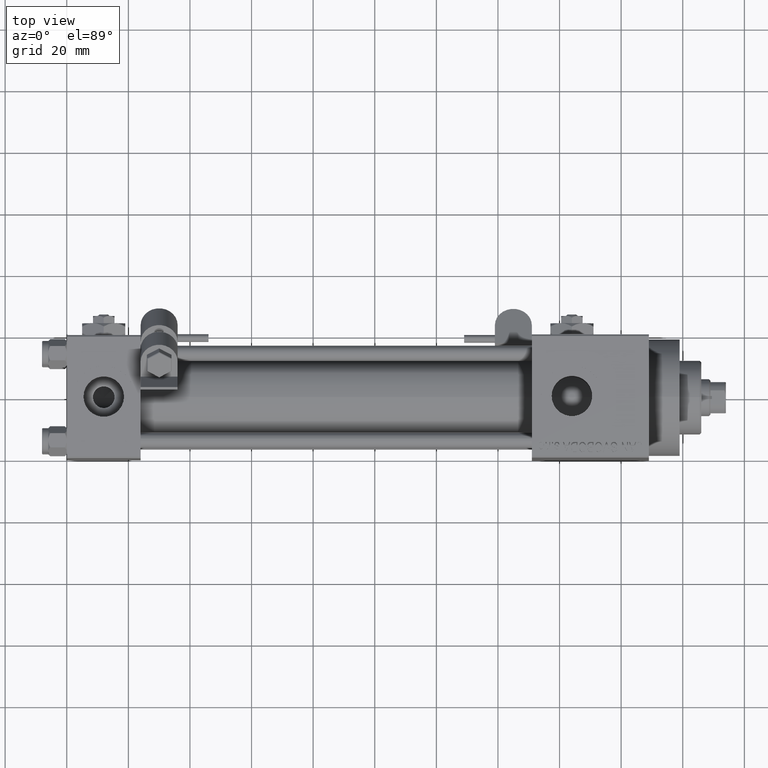
[diagram: clean part render]
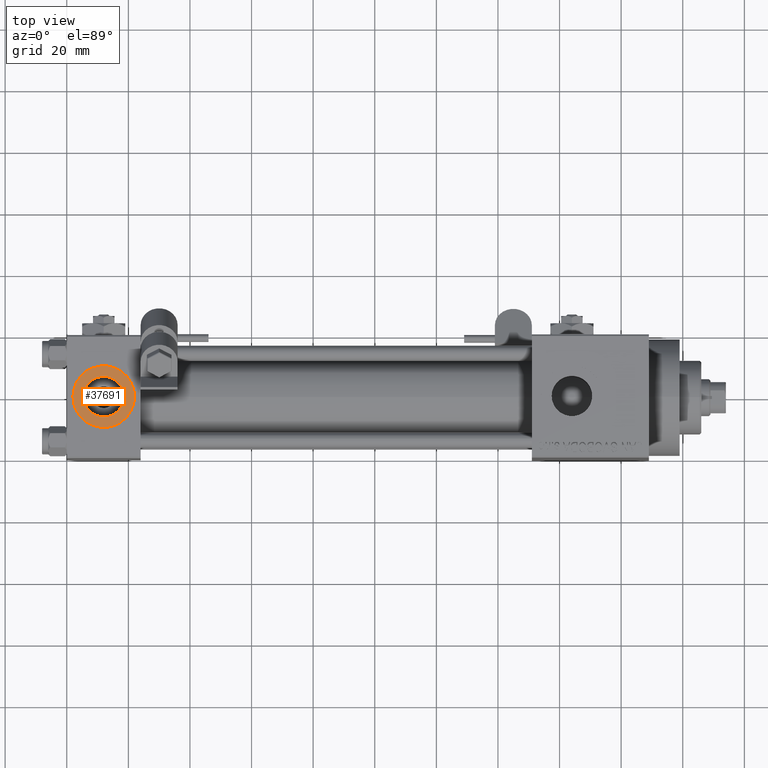
[diagram: same view with one face highlighted and labeled with its STEP entity id]
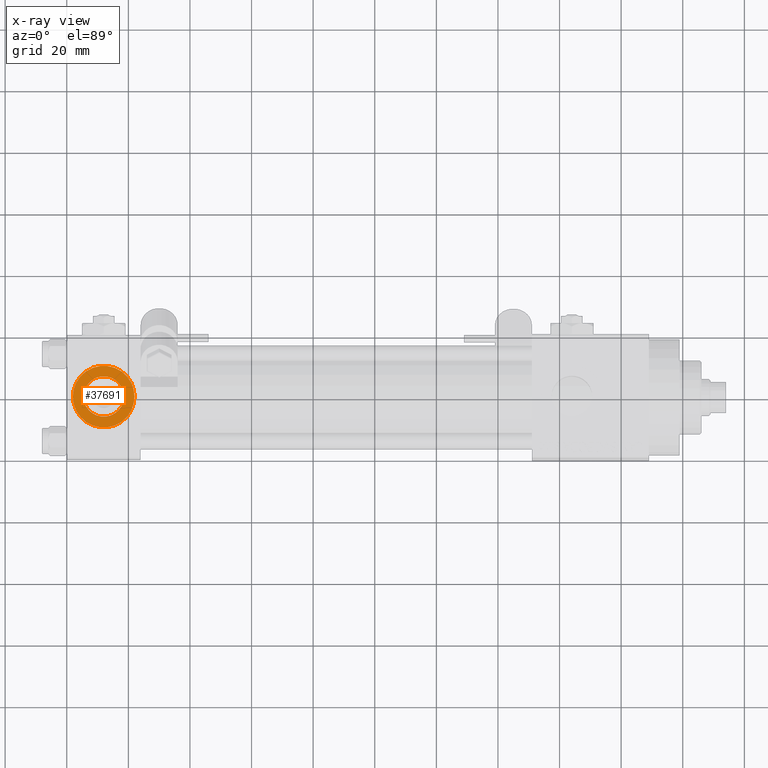
[diagram: x-ray of the same camera — body ghosted, the highlighted face saturated]
A machine part, top view. The second image highlights one B-rep face of the part: STEP entity #37691.
The next image is the same camera in x-ray: the body ghosted, the highlighted face saturated — about 0% of this face is hidden behind the body in this view.
In plain terms, the highlighted planar face has unit normal (0, 0, 1).
Its self-contained STEP definition (entity closure, byte-faithful):
#21 = AXIS2_PLACEMENT_3D ( 'NONE', #27739, #21565, #20372 ) ;
#1622 = ORIENTED_EDGE ( 'NONE', *, *, #34972, .T. ) ;
#1831 = ORIENTED_EDGE ( 'NONE', *, *, #5279, .T. ) ;
#2092 = CARTESIAN_POINT ( 'NONE',  ( 5.420000000000000817, 8.058175938389596335E-16, 19.79999999999999716 ) ) ;
#3113 = DIRECTION ( 'NONE',  ( 1.000000000000000000, 0.000000000000000000, 0.000000000000000000 ) ) ;
#3240 = EDGE_LOOP ( 'NONE', ( #1831, #1622 ) ) ;
#3408 = DIRECTION ( 'NONE',  ( 0.000000000000000000, 0.000000000000000000, 1.000000000000000000 ) ) ;
#5279 = EDGE_CURVE ( 'NONE', #36439, #10982, #38054, .T. ) ;
#7715 = DIRECTION ( 'NONE',  ( 1.000000000000000000, 0.000000000000000000, 0.000000000000000000 ) ) ;
#7964 = DIRECTION ( 'NONE',  ( 0.000000000000000000, 0.000000000000000000, 1.000000000000000000 ) ) ;
#9662 = FACE_BOUND ( 'NONE', #28442, .T. ) ;
#10982 = VERTEX_POINT ( 'NONE', #40497 ) ;
#11630 = VERTEX_POINT ( 'NONE', #2092 ) ;
#12125 = AXIS2_PLACEMENT_3D ( 'NONE', #15319, #3408, #7715 ) ;
#15028 = DIRECTION ( 'NONE',  ( 0.000000000000000000, 0.000000000000000000, 1.000000000000000000 ) ) ;
#15284 = CARTESIAN_POINT ( 'NONE',  ( 12.00000000000000000, 1.540743955509788682E-30, 19.79999999999999716 ) ) ;
#15319 = CARTESIAN_POINT ( 'NONE',  ( 12.00000000000000000, 1.540743955509788682E-30, 19.79999999999999716 ) ) ;
#19344 = CIRCLE ( 'NONE', #47683, 9.999999999999998224 ) ;
#20372 = DIRECTION ( 'NONE',  ( 1.000000000000000000, 0.000000000000000000, -0.000000000000000000 ) ) ;
#21443 = EDGE_CURVE ( 'NONE', #31685, #11630, #21515, .T. ) ;
#21515 = CIRCLE ( 'NONE', #23948, 6.579999999999999183 ) ;
#21565 = DIRECTION ( 'NONE',  ( 0.000000000000000000, 0.000000000000000000, 1.000000000000000000 ) ) ;
#22624 = CARTESIAN_POINT ( 'NONE',  ( 12.00000000000000000, 1.540743955509788682E-30, 19.79999999999999716 ) ) ;
#23137 = DIRECTION ( 'NONE',  ( 0.000000000000000000, 0.000000000000000000, 1.000000000000000000 ) ) ;
#23948 = AXIS2_PLACEMENT_3D ( 'NONE', #15284, #23137, #38617 ) ;
#23995 = ORIENTED_EDGE ( 'NONE', *, *, #21443, .F. ) ;
#24488 = EDGE_CURVE ( 'NONE', #11630, #31685, #27185, .T. ) ;
#27185 = CIRCLE ( 'NONE', #41763, 6.579999999999999183 ) ;
#27240 = CARTESIAN_POINT ( 'NONE',  ( 22.00000000000000000, 1.540743955509788682E-30, 19.79999999999999716 ) ) ;
#27474 = DIRECTION ( 'NONE',  ( 1.000000000000000000, 0.000000000000000000, 0.000000000000000000 ) ) ;
#27739 = CARTESIAN_POINT ( 'NONE',  ( 12.00000000000000000, 1.540743955509788682E-30, 19.79999999999999716 ) ) ;
#28442 = EDGE_LOOP ( 'NONE', ( #23995, #44304 ) ) ;
#29163 = CARTESIAN_POINT ( 'NONE',  ( 18.57999999999999829, 1.540743955509788682E-30, 19.79999999999999716 ) ) ;
#31685 = VERTEX_POINT ( 'NONE', #29163 ) ;
#31782 = CARTESIAN_POINT ( 'NONE',  ( 12.00000000000000000, 1.540743955509788682E-30, 19.79999999999999716 ) ) ;
#34972 = EDGE_CURVE ( 'NONE', #10982, #36439, #19344, .T. ) ;
#36439 = VERTEX_POINT ( 'NONE', #27240 ) ;
#37691 = ADVANCED_FACE ( 'NONE', ( #9662, #47010 ), #39412, .T. ) ;
#38054 = CIRCLE ( 'NONE', #12125, 9.999999999999998224 ) ;
#38617 = DIRECTION ( 'NONE',  ( 1.000000000000000000, 0.000000000000000000, 0.000000000000000000 ) ) ;
#39412 = PLANE ( 'NONE',  #21 ) ;
#40497 = CARTESIAN_POINT ( 'NONE',  ( 2.000000000000003553, 1.224646799147354440E-15, 19.79999999999999716 ) ) ;
#41763 = AXIS2_PLACEMENT_3D ( 'NONE', #22624, #15028, #3113 ) ;
#44304 = ORIENTED_EDGE ( 'NONE', *, *, #24488, .F. ) ;
#47010 = FACE_OUTER_BOUND ( 'NONE', #3240, .T. ) ;
#47683 = AXIS2_PLACEMENT_3D ( 'NONE', #31782, #7964, #27474 ) ;